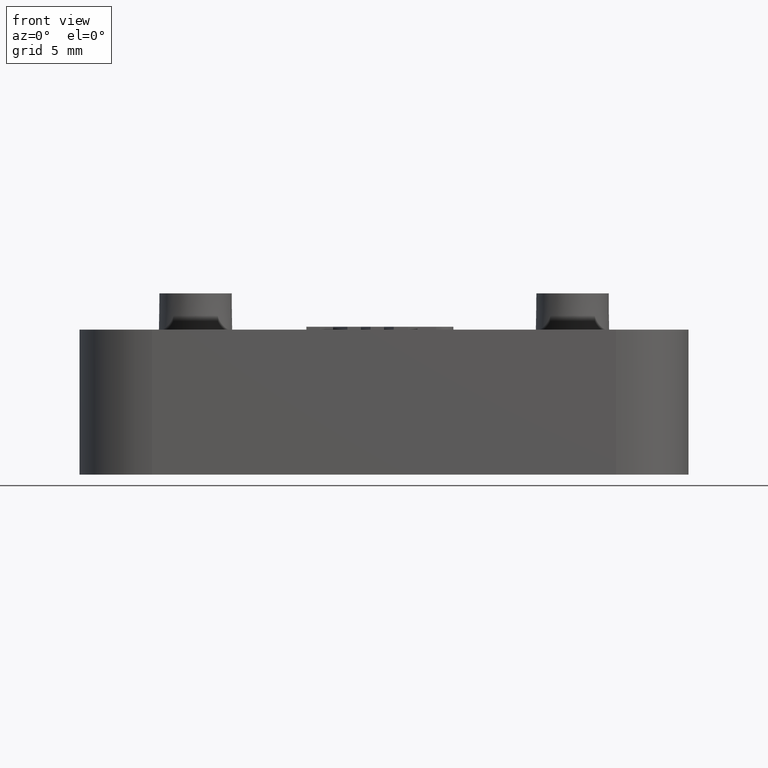
[diagram: clean part render]
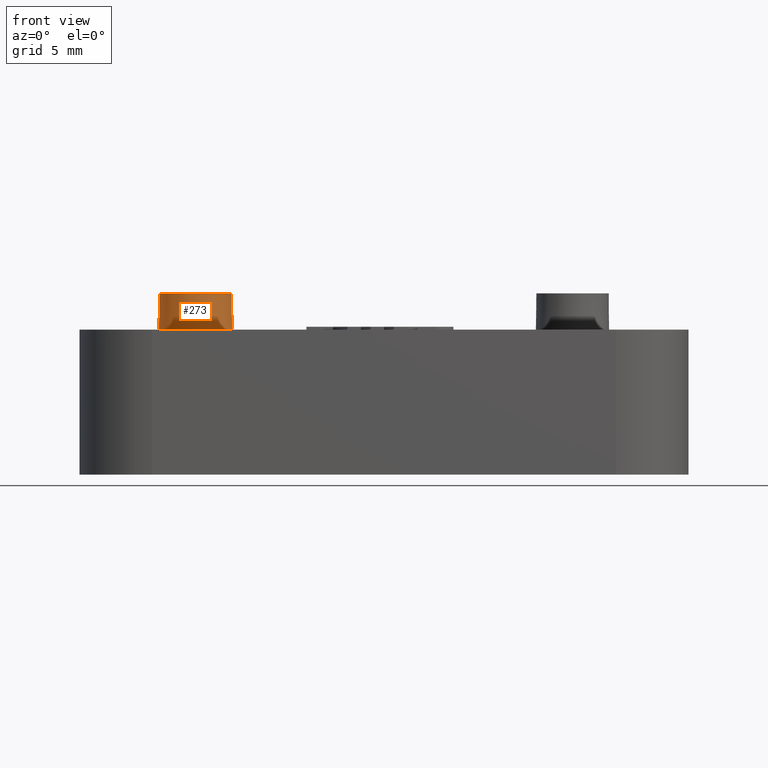
[diagram: same view with one face highlighted and labeled with its STEP entity id]
A machine part, front view. The second image highlights one B-rep face of the part: STEP entity #273.
In plain terms, the highlighted conical surface has half-angle 1 deg.
Its self-contained STEP definition (entity closure, byte-faithful):
#273 = ADVANCED_FACE( '', ( #744, #745 ), #746, .T. );
#744 = FACE_OUTER_BOUND( '', #1254, .T. );
#745 = FACE_BOUND( '', #1255, .T. );
#746 = CONICAL_SURFACE( '', #1256, 2.50000000000000, 0.0174532925199433 );
#1254 = EDGE_LOOP( '', ( #2960 ) );
#1255 = EDGE_LOOP( '', ( #2961 ) );
#1256 = AXIS2_PLACEMENT_3D( '', #2962, #2963, #2964 );
#2960 = ORIENTED_EDGE( '', *, *, #3252, .F. );
#2961 = ORIENTED_EDGE( '', *, *, #3761, .T. );
#2962 = CARTESIAN_POINT( '', ( -13.0000000000000, -4.08717113972723E-016, 12.5000000000000 ) );
#2963 = DIRECTION( '', ( 0.000000000000000, -6.12303176911189E-017, -1.00000000000000 ) );
#2964 = DIRECTION( '', ( 0.000000000000000, 1.00000000000000, -6.12303176911189E-017 ) );
#3252 = EDGE_CURVE( '', #3872, #3872, #3873, .T. );
#3761 = EDGE_CURVE( '', #4722, #4722, #4723, .T. );
#3872 = VERTEX_POINT( '', #4886 );
#3873 = CIRCLE( '', #4887, 2.54363766232054 );
#4722 = VERTEX_POINT( '', #6235 );
#4723 = CIRCLE( '', #6236, 2.50000000000000 );
#4886 = CARTESIAN_POINT( '', ( -13.0000000000000, 2.54363766232054, 9.99999999999999 ) );
#4887 = AXIS2_PLACEMENT_3D( '', #6400, #6401, #6402 );
#6235 = CARTESIAN_POINT( '', ( -10.5000000000000, -2.55641319744926E-016, 12.5000000000000 ) );
#6236 = AXIS2_PLACEMENT_3D( '', #6929, #6930, #6931 );
#6400 = CARTESIAN_POINT( '', ( -13.0000000000000, -5.61792908200521E-016, 9.99999999999999 ) );
#6401 = DIRECTION( '', ( 0.000000000000000, -6.12303176911189E-017, -1.00000000000000 ) );
#6402 = DIRECTION( '', ( 0.000000000000000, 1.00000000000000, -6.12303176911189E-017 ) );
#6929 = CARTESIAN_POINT( '', ( -13.0000000000000, -4.08717113972723E-016, 12.5000000000000 ) );
#6930 = DIRECTION( '', ( 8.75811540203012E-049, -6.12303176911189E-017, -1.00000000000000 ) );
#6931 = DIRECTION( '', ( 1.00000000000000, 6.12303176911190E-017, -3.74915180455535E-033 ) );